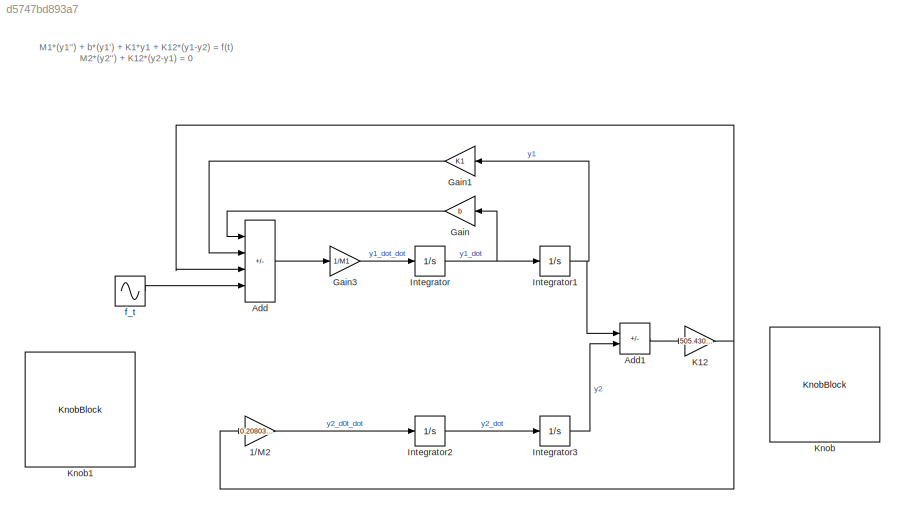
MODEL slx_d5747bd893a7
KIND model
CONFIG AbsTol = auto
CONFIG EnableMultiTasking = off
CONFIG FixedStep = auto
CONFIG MaxStep = auto
CONFIG MinStep = auto
CONFIG RelTol = 1e-3
CONFIG SampleTimeConstraint = Unconstrained
CONFIG SolverName = VariableStepAuto
CONFIG StartTime = 0.0
CONFIG StopTime = 10.0
WORKSPACE source: mxarray member
WORKSPACE K1 = 50
WORKSPACE M1 = 100
WORKSPACE b = 50
BLOCK [Gain] 1//M2
  Gain = 0.2080358205843146
BLOCK [Sum] Add
  IconShape = rectangular
  Inputs = ---+
  Ports = [4, 1]
BLOCK [Sum] Add1
  IconShape = rectangular
  Inputs = +-
  Ports = [2, 1]
BLOCK [Gain] Gain
  Gain = b
  NameLocation = top
BLOCK [Gain] Gain1
  Gain = K1
  NameLocation = top
BLOCK [Gain] Gain3
  Gain = 1/M1
BLOCK [Integrator] Integrator
  Ports = [1, 1]
BLOCK [Integrator] Integrator1
  Ports = [1, 1]
BLOCK [Integrator] Integrator2
  Ports = [1, 1]
BLOCK [Integrator] Integrator3
  Ports = [1, 1]
BLOCK [Gain] K12
  Gain = 505.4303995768229
BLOCK [KnobBlock] Knob
  ScaleMax = 1000
BLOCK [KnobBlock] Knob1
  ScaleMax = 1
  ScaleMin = 0.1
BLOCK [Sin] f_t
  Amplitude = 2
  Frequency = 10
  Ports = [0, 1]
  SampleTime = 0.01
ANNOTATION (root): M1*(y1'') + b*(y1') + K1*y1 + K12*(y1-y2) = f(t) M2*(y2'') + K12*(y2-y1) = 0
LINE 1//M2:1 -> Integrator2:1
LINE Add1:1 -> K12:1
LINE Add:1 -> Gain3:1
LINE Gain1:1 -> Add:2
LINE Gain3:1 -> Integrator:1
LINE Gain:1 -> Add:1
NET Integrator1:1 -> Add1:1, Gain1:1
LINE Integrator2:1 -> Integrator3:1
LINE Integrator3:1 -> Add1:2
NET Integrator:1 -> Gain:1, Integrator1:1
NET K12:1 -> 1//M2:1, Add:3
LINE f_t:1 -> Add:4
note: NET lines group one-source signal fan-out (src -> all destinations, sorted); 1:1 wires keep LINE
